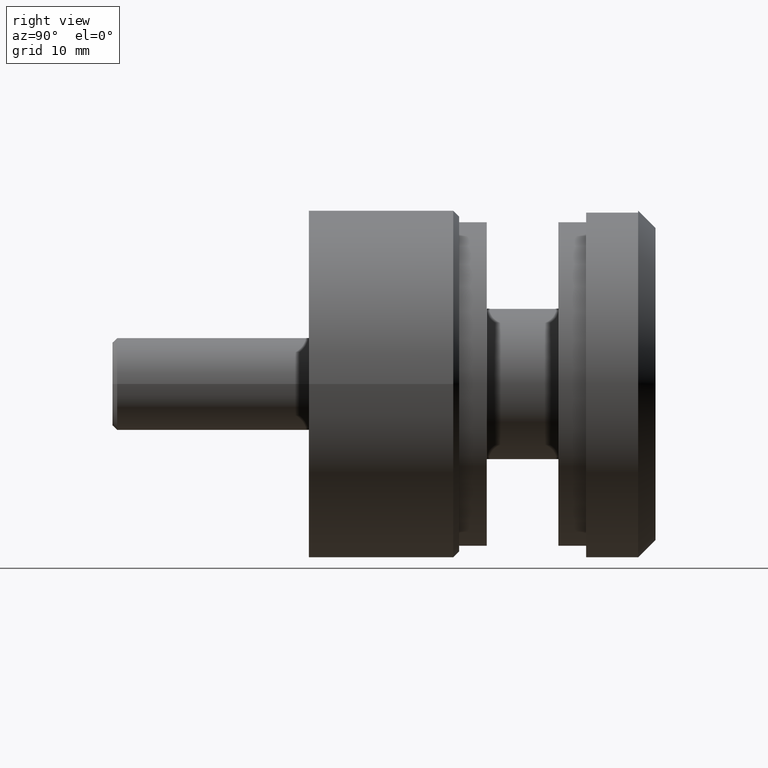
[diagram: clean part render]
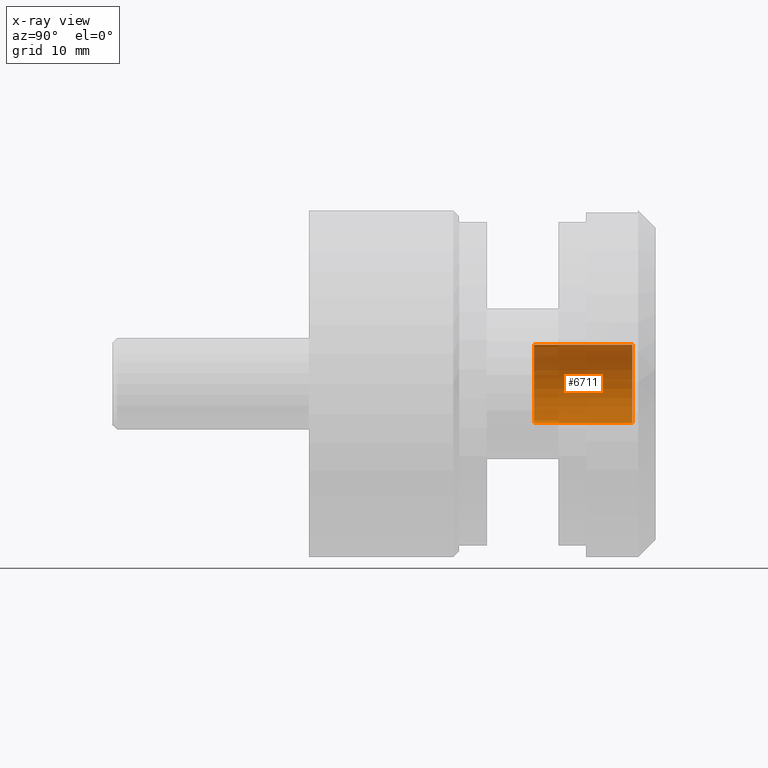
[diagram: x-ray — body ghosted, one internal face saturated and labeled with its STEP entity id]
A machine part, right view, then the same camera in x-ray: the body is ghosted and one INTERNAL B-rep face — a face not visible from any outside direction — is saturated and labeled: STEP entity #6711.
In plain terms, the highlighted cylindrical surface (partial cylindrical patch) has radius 3.4 mm, axis along (-0, -1, -0).
Its self-contained STEP definition (entity closure, byte-faithful):
#459 = CARTESIAN_POINT ( 'NONE',  ( 4.163799117100998094E-16, 0.000000000000000000, 3.399999999999998135 ) ) ;
#816 = VECTOR ( 'NONE', #12680, 1000.000000000000000 ) ;
#856 = DIRECTION ( 'NONE',  ( 0.000000000000000000, 0.000000000000000000, -1.000000000000000000 ) ) ;
#1069 = ORIENTED_EDGE ( 'NONE', *, *, #1400, .T. ) ;
#1079 = DIRECTION ( 'NONE',  ( -0.000000000000000000, -1.000000000000000000, -0.000000000000000000 ) ) ;
#1096 = ORIENTED_EDGE ( 'NONE', *, *, #12785, .F. ) ;
#1400 = EDGE_CURVE ( 'NONE', #14861, #5803, #15241, .T. ) ;
#2483 = CARTESIAN_POINT ( 'NONE',  ( 0.000000000000000000, 9.000000000000001776, 0.000000000000000000 ) ) ;
#2587 = DIRECTION ( 'NONE',  ( -0.000000000000000000, -1.000000000000000000, -0.000000000000000000 ) ) ;
#4477 = DIRECTION ( 'NONE',  ( -0.000000000000000000, -1.000000000000000000, -0.000000000000000000 ) ) ;
#4637 = ORIENTED_EDGE ( 'NONE', *, *, #10243, .T. ) ;
#5378 = AXIS2_PLACEMENT_3D ( 'NONE', #15712, #7352, #12177 ) ;
#5803 = VERTEX_POINT ( 'NONE', #13992 ) ;
#6711 = ADVANCED_FACE ( 'NONE', ( #15385 ), #12722, .F. ) ;
#6956 = EDGE_LOOP ( 'NONE', ( #9242, #1069, #4637, #1096 ) ) ;
#7098 = CARTESIAN_POINT ( 'NONE',  ( 0.000000000000000000, 0.000000000000000000, 0.000000000000000000 ) ) ;
#7352 = DIRECTION ( 'NONE',  ( 0.000000000000000000, -1.000000000000000000, 0.000000000000000000 ) ) ;
#8119 = EDGE_CURVE ( 'NONE', #14861, #14726, #11917, .T. ) ;
#8135 = VERTEX_POINT ( 'NONE', #10965 ) ;
#8708 = AXIS2_PLACEMENT_3D ( 'NONE', #7098, #1079, #856 ) ;
#8741 = VECTOR ( 'NONE', #4477, 1000.000000000000000 ) ;
#9229 = CARTESIAN_POINT ( 'NONE',  ( 0.000000000000000000, 0.000000000000000000, -3.399999999999998135 ) ) ;
#9242 = ORIENTED_EDGE ( 'NONE', *, *, #8119, .F. ) ;
#10243 = EDGE_CURVE ( 'NONE', #5803, #8135, #12939, .T. ) ;
#10965 = CARTESIAN_POINT ( 'NONE',  ( 0.000000000000000000, 0.5000000000000038858, -3.399999999999998135 ) ) ;
#11014 = DIRECTION ( 'NONE',  ( 0.000000000000000000, 0.000000000000000000, -1.000000000000000000 ) ) ;
#11917 = CIRCLE ( 'NONE', #14721, 3.399999999999997691 ) ;
#12177 = DIRECTION ( 'NONE',  ( 0.000000000000000000, 0.000000000000000000, -1.000000000000000000 ) ) ;
#12197 = LINE ( 'NONE', #9229, #8741 ) ;
#12680 = DIRECTION ( 'NONE',  ( -0.000000000000000000, -1.000000000000000000, -0.000000000000000000 ) ) ;
#12722 = CYLINDRICAL_SURFACE ( 'NONE', #8708, 3.399999999999998135 ) ;
#12785 = EDGE_CURVE ( 'NONE', #14726, #8135, #12197, .T. ) ;
#12939 = CIRCLE ( 'NONE', #5378, 3.399999999999998135 ) ;
#13992 = CARTESIAN_POINT ( 'NONE',  ( 4.163799117100998094E-16, 0.5000000000000038858, 3.399999999999998135 ) ) ;
#14200 = CARTESIAN_POINT ( 'NONE',  ( 0.000000000000000000, 9.000000000000001776, -3.399999999999997691 ) ) ;
#14415 = CARTESIAN_POINT ( 'NONE',  ( 4.163799117100998094E-16, 9.000000000000001776, 3.399999999999997691 ) ) ;
#14721 = AXIS2_PLACEMENT_3D ( 'NONE', #2483, #2587, #11014 ) ;
#14726 = VERTEX_POINT ( 'NONE', #14200 ) ;
#14861 = VERTEX_POINT ( 'NONE', #14415 ) ;
#15241 = LINE ( 'NONE', #459, #816 ) ;
#15385 = FACE_OUTER_BOUND ( 'NONE', #6956, .T. ) ;
#15712 = CARTESIAN_POINT ( 'NONE',  ( 0.000000000000000000, 0.5000000000000038858, 0.000000000000000000 ) ) ;